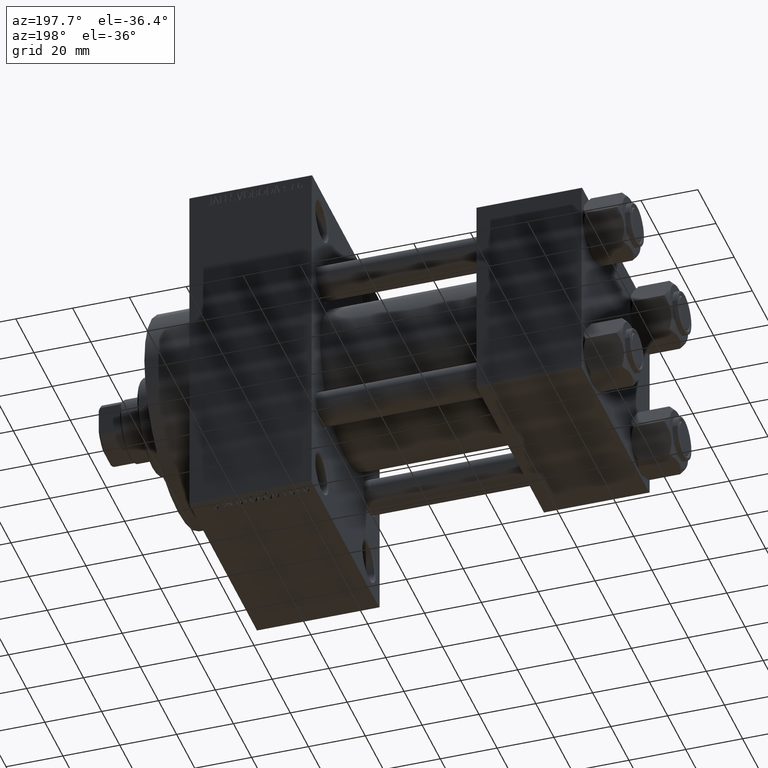
[diagram: clean part render]
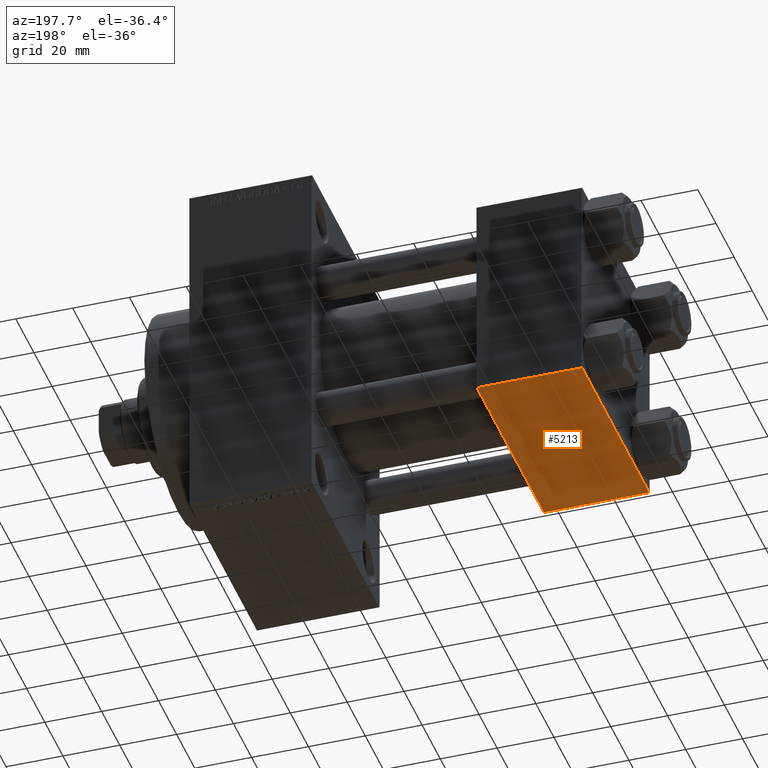
[diagram: same view with one face highlighted and labeled with its STEP entity id]
A machine part, auxiliary view. The second image highlights one B-rep face of the part: STEP entity #5213.
In plain terms, the highlighted planar face has unit normal (0, 0, -1).
Its self-contained STEP definition (entity closure, byte-faithful):
#694 = VECTOR ( 'NONE', #22351, 1000.000000000000000 ) ;
#1428 = CARTESIAN_POINT ( 'NONE',  ( 0.000000000000000000, -37.00000000000002132, -37.50000000000000711 ) ) ;
#2000 = CARTESIAN_POINT ( 'NONE',  ( 37.00000000000000000, 37.49999999999999289, -37.50000000000000000 ) ) ;
#2185 = EDGE_CURVE ( 'NONE', #26452, #33480, #8825, .T. ) ;
#5213 = ADVANCED_FACE ( 'NONE', ( #36263 ), #47010, .T. ) ;
#8825 = LINE ( 'NONE', #1428, #37453 ) ;
#10643 = ORIENTED_EDGE ( 'NONE', *, *, #25853, .T. ) ;
#11199 = DIRECTION ( 'NONE',  ( 0.000000000000000000, 1.000000000000000000, 9.251858538542972814E-17 ) ) ;
#17576 = LINE ( 'NONE', #38831, #40048 ) ;
#18262 = CARTESIAN_POINT ( 'NONE',  ( 0.000000000000000000, 36.99999999999997868, -37.50000000000000000 ) ) ;
#18363 = CARTESIAN_POINT ( 'NONE',  ( 37.00000000000000000, 37.49999999999999289, -37.50000000000000000 ) ) ;
#21879 = LINE ( 'NONE', #33087, #694 ) ;
#22351 = DIRECTION ( 'NONE',  ( 0.000000000000000000, -1.000000000000000000, -9.251858538542972814E-17 ) ) ;
#23535 = EDGE_CURVE ( 'NONE', #32264, #33480, #21879, .T. ) ;
#25853 = EDGE_CURVE ( 'NONE', #34544, #26452, #34703, .T. ) ;
#26452 = VERTEX_POINT ( 'NONE', #37575 ) ;
#27693 = CARTESIAN_POINT ( 'NONE',  ( 37.00000000000000000, 36.99999999999997868, -37.50000000000000000 ) ) ;
#29176 = CARTESIAN_POINT ( 'NONE',  ( 0.000000000000000000, -37.00000000000002132, -37.50000000000000711 ) ) ;
#29802 = VECTOR ( 'NONE', #45443, 1000.000000000000000 ) ;
#31249 = EDGE_LOOP ( 'NONE', ( #37709, #39729, #10643, #39352 ) ) ;
#32264 = VERTEX_POINT ( 'NONE', #18262 ) ;
#33087 = CARTESIAN_POINT ( 'NONE',  ( 0.000000000000000000, 37.49999999999999289, -37.50000000000000000 ) ) ;
#33480 = VERTEX_POINT ( 'NONE', #29176 ) ;
#34532 = AXIS2_PLACEMENT_3D ( 'NONE', #18363, #36729, #11199 ) ;
#34544 = VERTEX_POINT ( 'NONE', #27693 ) ;
#34703 = LINE ( 'NONE', #2000, #29802 ) ;
#36263 = FACE_OUTER_BOUND ( 'NONE', #31249, .T. ) ;
#36729 = DIRECTION ( 'NONE',  ( 0.000000000000000000, 9.251858538542972814E-17, -1.000000000000000000 ) ) ;
#37453 = VECTOR ( 'NONE', #38409, 1000.000000000000000 ) ;
#37575 = CARTESIAN_POINT ( 'NONE',  ( 37.00000000000000000, -37.00000000000002132, -37.50000000000000711 ) ) ;
#37709 = ORIENTED_EDGE ( 'NONE', *, *, #23535, .F. ) ;
#38409 = DIRECTION ( 'NONE',  ( -1.000000000000000000, 0.000000000000000000, 0.000000000000000000 ) ) ;
#38831 = CARTESIAN_POINT ( 'NONE',  ( 37.00000000000000000, 36.99999999999997868, -37.50000000000000000 ) ) ;
#39352 = ORIENTED_EDGE ( 'NONE', *, *, #2185, .T. ) ;
#39729 = ORIENTED_EDGE ( 'NONE', *, *, #41154, .T. ) ;
#40048 = VECTOR ( 'NONE', #42649, 1000.000000000000000 ) ;
#41154 = EDGE_CURVE ( 'NONE', #32264, #34544, #17576, .T. ) ;
#42649 = DIRECTION ( 'NONE',  ( 1.000000000000000000, 0.000000000000000000, 0.000000000000000000 ) ) ;
#45443 = DIRECTION ( 'NONE',  ( 0.000000000000000000, -1.000000000000000000, -9.251858538542972814E-17 ) ) ;
#47010 = PLANE ( 'NONE',  #34532 ) ;